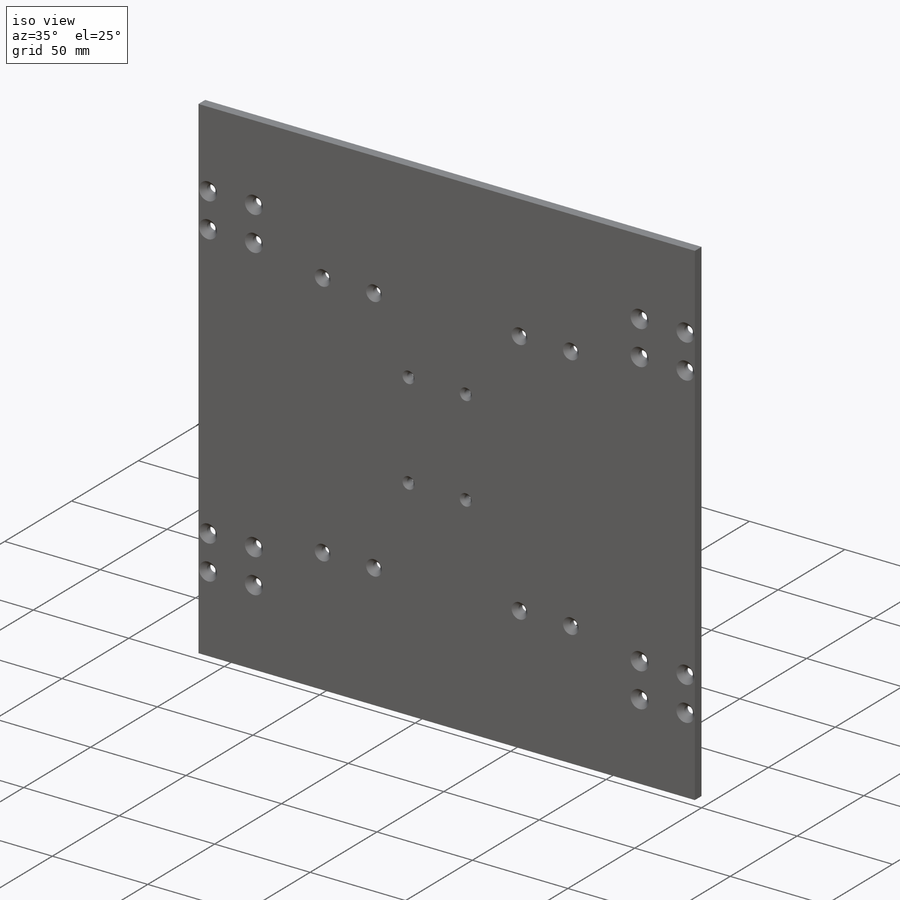
[diagram: iso view]
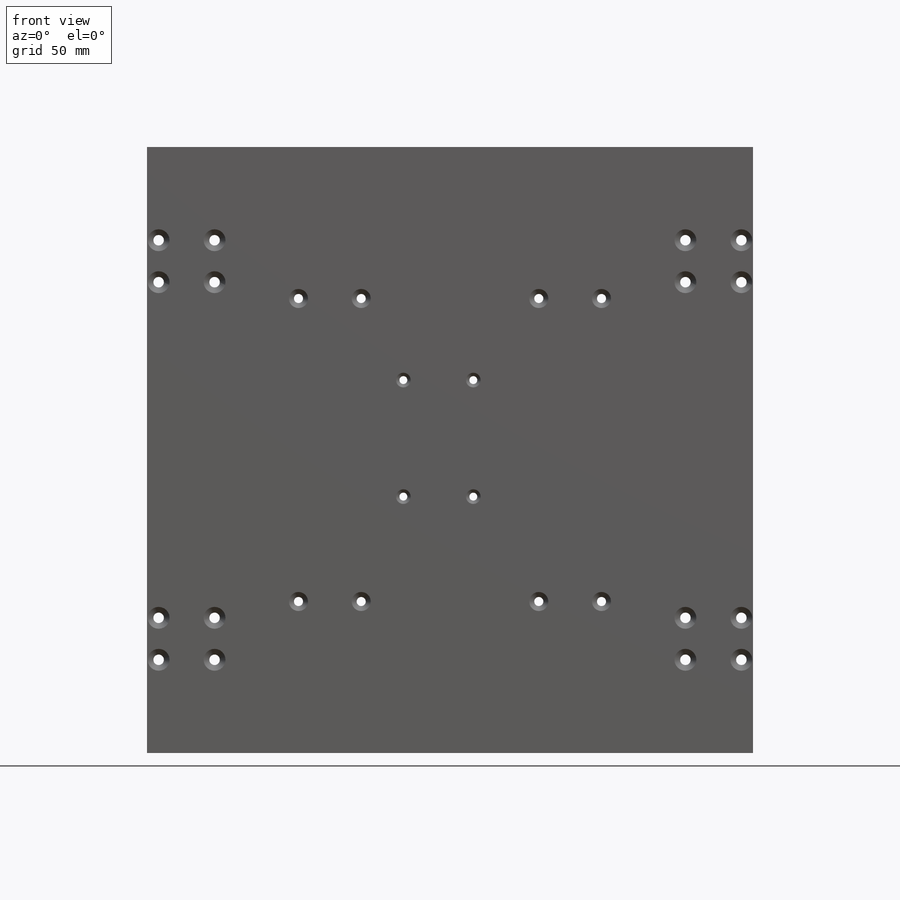
[diagram: front view]
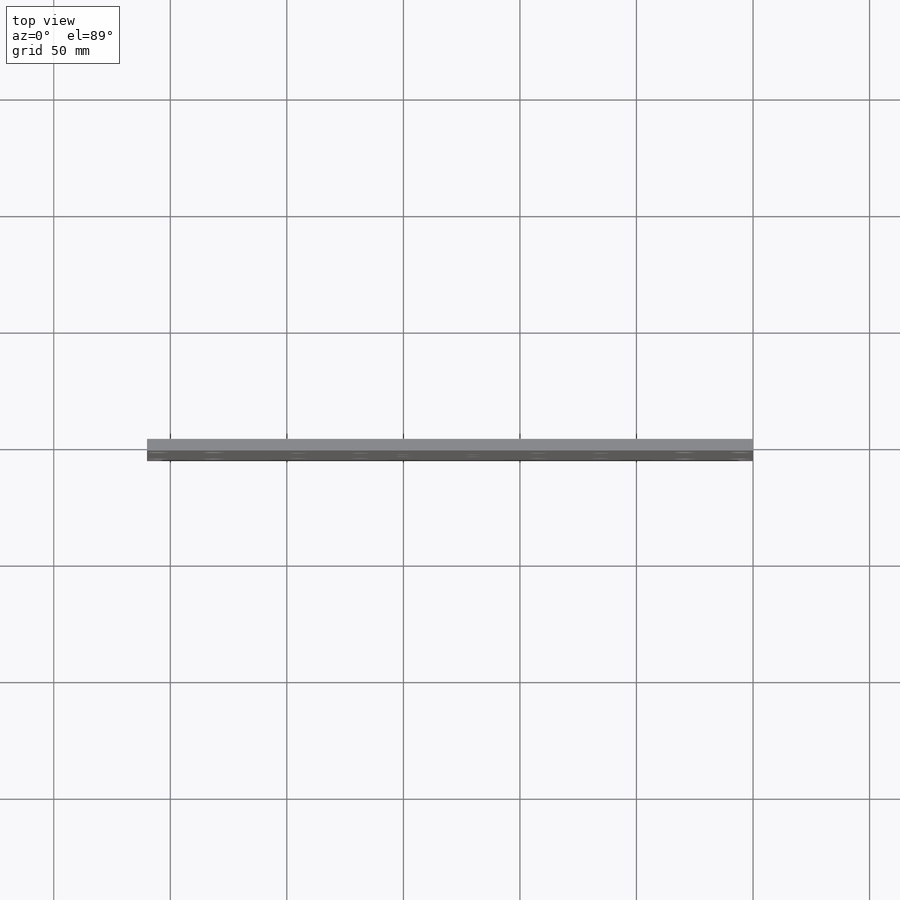
[diagram: top view]
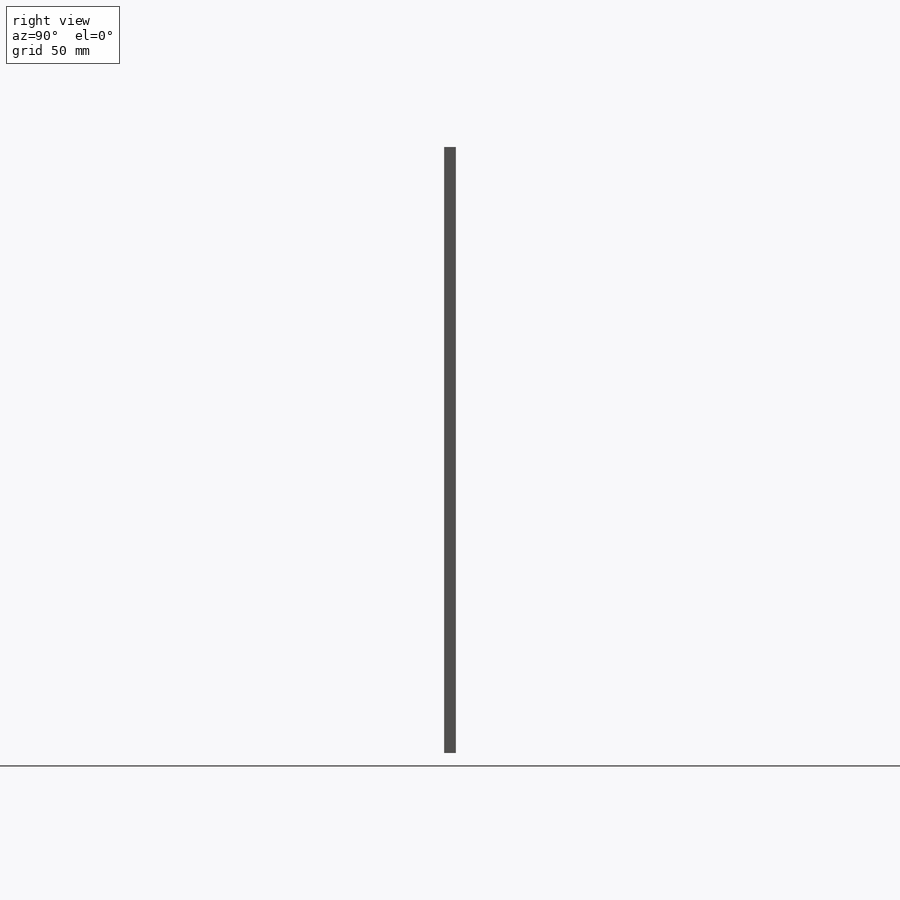
[diagram: right view]
SOLIDWORKS PART (.sldprt)
format: sldprt  version: not decoded by parser v0  size: 617,984 bytes
history: native  units: mm
features: sketch x8, hole x3, material x1, extrude x1, cut_extrude x1 (+12 scaffold rows collapsed)
feature tree (26):
  scaffold x12  (default folders/planes/origin — collapsed)
  material  "Material <not specified>"
  sketch  "Sketch1"  dims[D1=300.0mm D2=260.0mm]
  extrude  "Boss-Extrude1"  Depth=5mm
  sketch  "Sketch3"  dims[c1.D1=3.0mm c1.D3=3.0mm c1.D2=125.0mm c2.D3=125.0mm]
  cut_extrude  "temp. sensor"  Depth=2mm
  hole  "CSK for M4 Flat Head Machine Screw1"  Diameter=4.5mm Depth=5mm
  sketch  "Sketch5"  dims[D1=5.0mm D2=24.0mm D3=40.0mm D4=18.0mm]
  sketch  "Sketch4"  dims[hole-wizard template sketch: 55 standard entries collapsed; hole parameters kept: c17.Thru Hole Depth=5.0mm c17.Near C'Sink Dia.=9.4mm c17.D4=~3.666174mm c17.Near C'Sink Angle=90.0deg]
  hole  "CSK for M3.5 Flat Head Machine Screw1"  Diameter=3.9mm Depth=5mm
  sketch  "Sketch8"  dims[D1=65.0mm D2=65.0mm D3=26.907mm]
  sketch  "Sketch7"  dims[hole-wizard template sketch: 54 standard entries collapsed; hole parameters kept: c17.Thru Hole Dia.=3.9mm c17.Thru Hole Depth=5.0mm c17.Near C'Sink Dia.=8.2mm c17.D4=~3.666174mm c17.Near C'Sink Angle=90.0deg]
  hole  "CSK for M3 Flat Head Machine Screw1"  Diameter=3.4mm Depth=5mm
  sketch  "Sketch10"  dims[D1=30.0mm D2=110.0mm D3=50.0mm D4=100.0mm]
  sketch  "Sketch9"  dims[hole-wizard template sketch: 56 standard entries collapsed; hole parameters kept: c17.Near C'Sink Dia.=6.3mm c17.D4=~3.666174mm c17.Near C'Sink Angle=90.0deg]
decode coverage: 13 of 13 modeling features carry decoded parameters
note: ~ marks probable driven/reference dimensions
note: suppression state not decoded; provenance and decode notes live in map.json
